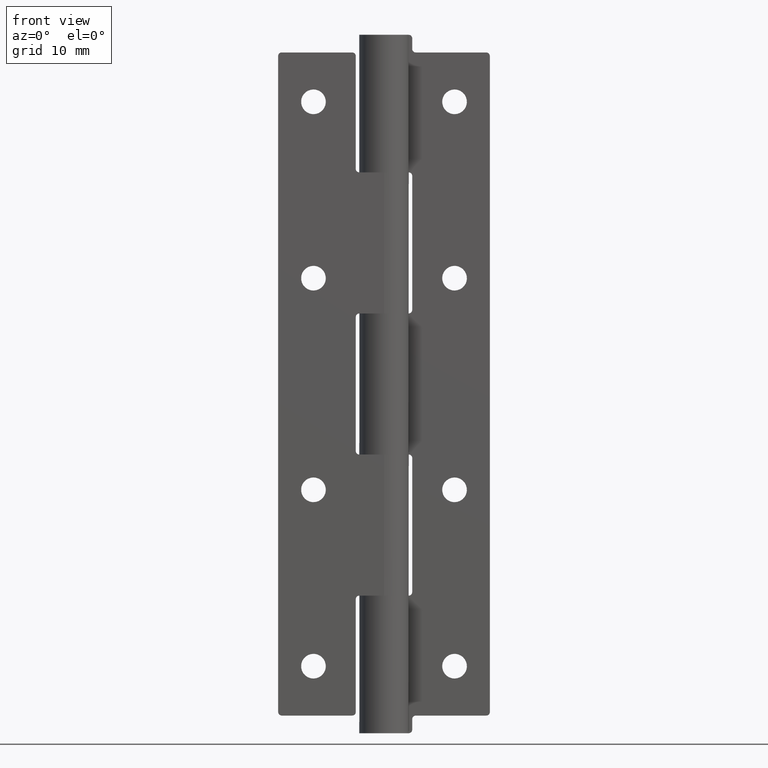
[diagram: clean part render]
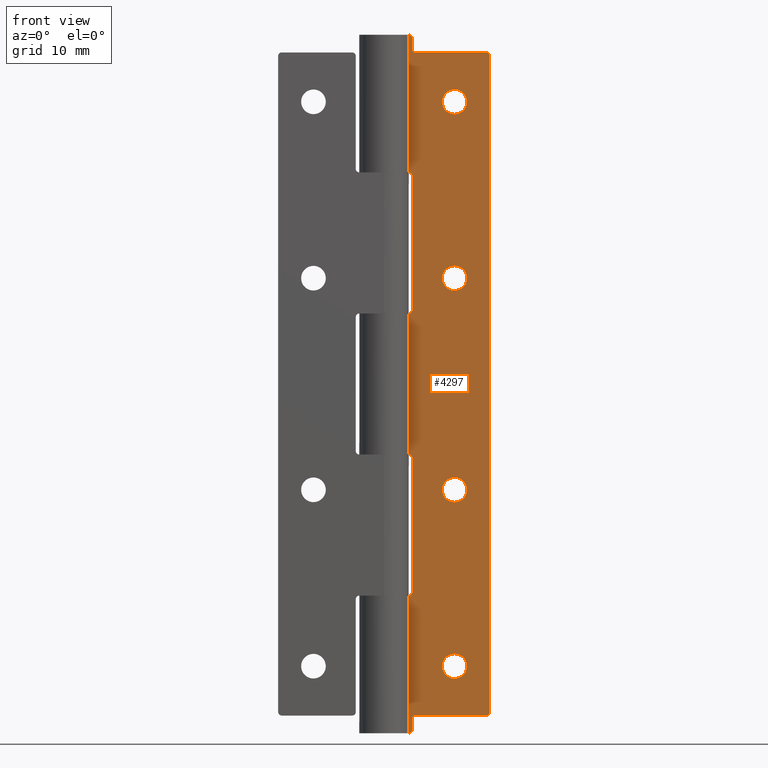
[diagram: same view with one face highlighted and labeled with its STEP entity id]
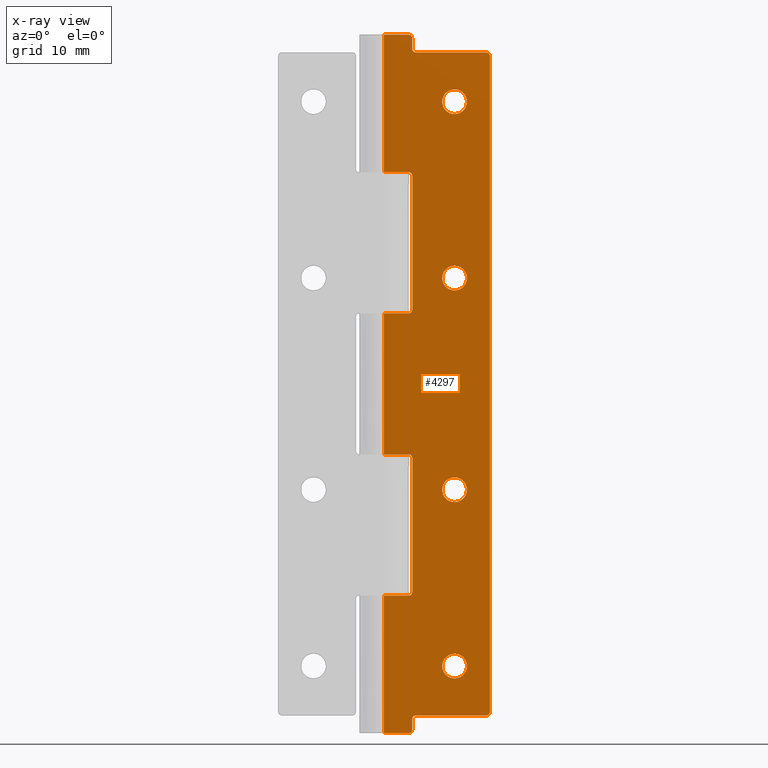
[diagram: x-ray of the same camera — body ghosted, the highlighted face saturated]
A machine part, front view. The second image highlights one B-rep face of the part: STEP entity #4297.
The next image is the same camera in x-ray: the body ghosted, the highlighted face saturated — about 0% of this face is hidden behind the body in this view.
In plain terms, the highlighted face is a freeform B-spline surface patch.
Its self-contained STEP definition (entity closure, byte-faithful):
#2262=CARTESIAN_POINT('',(10.0,2.0,91.250000000000000));
#2263=VERTEX_POINT('',#2262);
#2264=CARTESIAN_POINT('',(8.255394665999850,2.0,89.637303417940785));
#2265=VERTEX_POINT('',#2264);
#2266=CARTESIAN_POINT('',(10.0,2.0,91.250000000000000));
#2267=CARTESIAN_POINT('',(8.382316640373984,2.000000000000000,91.249999999999986));
#2268=CARTESIAN_POINT('',(8.255394665999850,2.0,89.637303417940785));
#2276=(BOUNDED_CURVE()B_SPLINE_CURVE(2,(#2266,#2267,#2268),.UNSPECIFIED.,.F.,.U.)B_SPLINE_CURVE_WITH_KNOTS((3,3),(0.0,0.236331300550804),.UNSPECIFIED.)CURVE()GEOMETRIC_REPRESENTATION_ITEM()RATIONAL_B_SPLINE_CURVE((1.0,0.723120658701222,0.969723356000766))REPRESENTATION_ITEM(''));
#2277=EDGE_CURVE('',#2263,#2265,#2276,.T.);
#2318=CARTESIAN_POINT('',(11.744605334000150,2.0,89.362696582059186));
#2319=VERTEX_POINT('',#2318);
#2325=CARTESIAN_POINT('',(11.744605334000152,2.0,89.362696582059186));
#2326=CARTESIAN_POINT('',(11.750000000000005,2.0,89.431242312317579));
#2327=CARTESIAN_POINT('',(11.750000000000000,2.0,89.500000000000000));
#2328=CARTESIAN_POINT('',(11.750000000000004,2.0,91.249999999999986));
#2329=CARTESIAN_POINT('',(10.0,2.0,91.250000000000000));
#2337=(BOUNDED_CURVE()B_SPLINE_CURVE(2,(#2325,#2326,#2327,#2328,#2329),.UNSPECIFIED.,.F.,.U.)B_SPLINE_CURVE_WITH_KNOTS((3,2,3),(0.736331300550804,0.750000000000000,1.0),.UNSPECIFIED.)CURVE()GEOMETRIC_REPRESENTATION_ITEM()RATIONAL_B_SPLINE_CURVE((0.969723356000766,0.983986122485325,1.0,0.707106781186547,1.0))REPRESENTATION_ITEM(''));
#2338=EDGE_CURVE('',#2319,#2263,#2337,.T.);
#2361=CARTESIAN_POINT('',(10.0,2.0,87.750000000000000));
#2362=VERTEX_POINT('',#2361);
#2363=CARTESIAN_POINT('',(8.255394665999850,2.0,89.637303417940785));
#2364=CARTESIAN_POINT('',(8.250000000000000,2.000000000000000,89.568757687682449));
#2365=CARTESIAN_POINT('',(8.250000000000000,2.0,89.500000000000000));
#2366=CARTESIAN_POINT('',(8.250000000000000,2.0,87.750000000000000));
#2367=CARTESIAN_POINT('',(10.0,2.0,87.750000000000000));
#2375=(BOUNDED_CURVE()B_SPLINE_CURVE(2,(#2363,#2364,#2365,#2366,#2367),.UNSPECIFIED.,.F.,.U.)B_SPLINE_CURVE_WITH_KNOTS((3,2,3),(0.236331300550804,0.250000000000000,0.500000000000000),.UNSPECIFIED.)CURVE()GEOMETRIC_REPRESENTATION_ITEM()RATIONAL_B_SPLINE_CURVE((0.969723356000766,0.983986122485326,1.0,0.707106781186547,1.0))REPRESENTATION_ITEM(''));
#2376=EDGE_CURVE('',#2265,#2362,#2375,.T.);
#2378=CARTESIAN_POINT('',(10.0,2.0,87.750000000000000));
#2379=CARTESIAN_POINT('',(11.617683359626023,2.0,87.750000000000014));
#2380=CARTESIAN_POINT('',(11.744605334000154,2.000000000000000,89.362696582059186));
#2388=(BOUNDED_CURVE()B_SPLINE_CURVE(2,(#2378,#2379,#2380),.UNSPECIFIED.,.F.,.U.)B_SPLINE_CURVE_WITH_KNOTS((3,3),(0.500000000000000,0.736331300550805),.UNSPECIFIED.)CURVE()GEOMETRIC_REPRESENTATION_ITEM()RATIONAL_B_SPLINE_CURVE((1.0,0.723120658701221,0.969723356000767))REPRESENTATION_ITEM(''));
#2389=EDGE_CURVE('',#2362,#2319,#2388,.T.);
#2444=CARTESIAN_POINT('',(10.0,2.0,66.250000000000000));
#2445=VERTEX_POINT('',#2444);
#2446=CARTESIAN_POINT('',(8.255394665999850,2.0,64.637303417940799));
#2447=VERTEX_POINT('',#2446);
#2448=CARTESIAN_POINT('',(10.0,2.0,66.250000000000000));
#2449=CARTESIAN_POINT('',(8.382316640373984,2.000000000000000,66.250000000000014));
#2450=CARTESIAN_POINT('',(8.255394665999850,2.0,64.637303417940814));
#2458=(BOUNDED_CURVE()B_SPLINE_CURVE(2,(#2448,#2449,#2450),.UNSPECIFIED.,.F.,.U.)B_SPLINE_CURVE_WITH_KNOTS((3,3),(0.0,0.236331300550804),.UNSPECIFIED.)CURVE()GEOMETRIC_REPRESENTATION_ITEM()RATIONAL_B_SPLINE_CURVE((1.0,0.723120658701222,0.969723356000766))REPRESENTATION_ITEM(''));
#2459=EDGE_CURVE('',#2445,#2447,#2458,.T.);
#2500=CARTESIAN_POINT('',(11.744605334000150,2.0,64.362696582059215));
#2501=VERTEX_POINT('',#2500);
#2507=CARTESIAN_POINT('',(11.744605334000147,2.000000000000000,64.362696582059215));
#2508=CARTESIAN_POINT('',(11.749999999999996,2.000000000000000,64.431242312317579));
#2509=CARTESIAN_POINT('',(11.750000000000000,2.0,64.500000000000000));
#2510=CARTESIAN_POINT('',(11.750000000000004,2.0,66.250000000000000));
#2511=CARTESIAN_POINT('',(10.0,2.0,66.250000000000000));
#2519=(BOUNDED_CURVE()B_SPLINE_CURVE(2,(#2507,#2508,#2509,#2510,#2511),.UNSPECIFIED.,.F.,.U.)B_SPLINE_CURVE_WITH_KNOTS((3,2,3),(0.736331300550804,0.750000000000000,1.0),.UNSPECIFIED.)CURVE()GEOMETRIC_REPRESENTATION_ITEM()RATIONAL_B_SPLINE_CURVE((0.969723356000765,0.983986122485325,1.0,0.707106781186547,1.0))REPRESENTATION_ITEM(''));
#2520=EDGE_CURVE('',#2501,#2445,#2519,.T.);
#2543=CARTESIAN_POINT('',(10.0,2.0,62.750000000000000));
#2544=VERTEX_POINT('',#2543);
#2545=CARTESIAN_POINT('',(8.255394665999850,2.0,64.637303417940814));
#2546=CARTESIAN_POINT('',(8.250000000000000,2.000000000000000,64.568757687682435));
#2547=CARTESIAN_POINT('',(8.250000000000000,2.0,64.500000000000000));
#2548=CARTESIAN_POINT('',(8.250000000000000,2.0,62.750000000000000));
#2549=CARTESIAN_POINT('',(10.0,2.0,62.750000000000000));
#2557=(BOUNDED_CURVE()B_SPLINE_CURVE(2,(#2545,#2546,#2547,#2548,#2549),.UNSPECIFIED.,.F.,.U.)B_SPLINE_CURVE_WITH_KNOTS((3,2,3),(0.236331300550804,0.250000000000000,0.500000000000000),.UNSPECIFIED.)CURVE()GEOMETRIC_REPRESENTATION_ITEM()RATIONAL_B_SPLINE_CURVE((0.969723356000766,0.983986122485326,1.0,0.707106781186547,1.0))REPRESENTATION_ITEM(''));
#2558=EDGE_CURVE('',#2447,#2544,#2557,.T.);
#2560=CARTESIAN_POINT('',(10.0,2.0,62.750000000000000));
#2561=CARTESIAN_POINT('',(11.617683359626023,2.0,62.750000000000000));
#2562=CARTESIAN_POINT('',(11.744605334000154,2.000000000000000,64.362696582059215));
#2570=(BOUNDED_CURVE()B_SPLINE_CURVE(2,(#2560,#2561,#2562),.UNSPECIFIED.,.F.,.U.)B_SPLINE_CURVE_WITH_KNOTS((3,3),(0.500000000000000,0.736331300550805),.UNSPECIFIED.)CURVE()GEOMETRIC_REPRESENTATION_ITEM()RATIONAL_B_SPLINE_CURVE((1.0,0.723120658701221,0.969723356000767))REPRESENTATION_ITEM(''));
#2571=EDGE_CURVE('',#2544,#2501,#2570,.T.);
#2626=CARTESIAN_POINT('',(10.0,2.0,36.250000000000007));
#2627=VERTEX_POINT('',#2626);
#2628=CARTESIAN_POINT('',(8.255394665999852,2.0,34.637303417940799));
#2629=VERTEX_POINT('',#2628);
#2630=CARTESIAN_POINT('',(10.0,2.0,36.250000000000007));
#2631=CARTESIAN_POINT('',(8.382316640373993,2.000000000000000,36.250000000000000));
#2632=CARTESIAN_POINT('',(8.255394665999852,2.0,34.637303417940799));
#2640=(BOUNDED_CURVE()B_SPLINE_CURVE(2,(#2630,#2631,#2632),.UNSPECIFIED.,.F.,.U.)B_SPLINE_CURVE_WITH_KNOTS((3,3),(0.0,0.236331300550804),.UNSPECIFIED.)CURVE()GEOMETRIC_REPRESENTATION_ITEM()RATIONAL_B_SPLINE_CURVE((1.0,0.723120658701223,0.969723356000764))REPRESENTATION_ITEM(''));
#2641=EDGE_CURVE('',#2627,#2629,#2640,.T.);
#2682=CARTESIAN_POINT('',(11.744605334000150,2.0,34.362696582059201));
#2683=VERTEX_POINT('',#2682);
#2689=CARTESIAN_POINT('',(11.744605334000152,2.000000000000000,34.362696582059201));
#2690=CARTESIAN_POINT('',(11.749999999999996,2.000000000000000,34.431242312317565));
#2691=CARTESIAN_POINT('',(11.750000000000000,2.0,34.500000000000000));
#2692=CARTESIAN_POINT('',(11.750000000000004,2.0,36.250000000000007));
#2693=CARTESIAN_POINT('',(10.0,2.0,36.250000000000007));
#2701=(BOUNDED_CURVE()B_SPLINE_CURVE(2,(#2689,#2690,#2691,#2692,#2693),.UNSPECIFIED.,.F.,.U.)B_SPLINE_CURVE_WITH_KNOTS((3,2,3),(0.736331300550803,0.750000000000000,1.0),.UNSPECIFIED.)CURVE()GEOMETRIC_REPRESENTATION_ITEM()RATIONAL_B_SPLINE_CURVE((0.969723356000764,0.983986122485325,1.0,0.707106781186547,1.0))REPRESENTATION_ITEM(''));
#2702=EDGE_CURVE('',#2683,#2627,#2701,.T.);
#2725=CARTESIAN_POINT('',(10.0,2.0,32.750000000000000));
#2726=VERTEX_POINT('',#2725);
#2727=CARTESIAN_POINT('',(8.255394665999852,2.000000000000000,34.637303417940799));
#2728=CARTESIAN_POINT('',(8.250000000000000,2.000000000000000,34.568757687682435));
#2729=CARTESIAN_POINT('',(8.250000000000000,2.0,34.500000000000000));
#2730=CARTESIAN_POINT('',(8.250000000000000,2.0,32.750000000000000));
#2731=CARTESIAN_POINT('',(10.0,2.0,32.750000000000000));
#2739=(BOUNDED_CURVE()B_SPLINE_CURVE(2,(#2727,#2728,#2729,#2730,#2731),.UNSPECIFIED.,.F.,.U.)B_SPLINE_CURVE_WITH_KNOTS((3,2,3),(0.236331300550804,0.250000000000000,0.500000000000000),.UNSPECIFIED.)CURVE()GEOMETRIC_REPRESENTATION_ITEM()RATIONAL_B_SPLINE_CURVE((0.969723356000764,0.983986122485325,1.0,0.707106781186547,1.0))REPRESENTATION_ITEM(''));
#2740=EDGE_CURVE('',#2629,#2726,#2739,.T.);
#2742=CARTESIAN_POINT('',(10.0,2.0,32.750000000000000));
#2743=CARTESIAN_POINT('',(11.617683359626001,2.000000000000000,32.750000000000007));
#2744=CARTESIAN_POINT('',(11.744605334000148,2.0,34.362696582059201));
#2752=(BOUNDED_CURVE()B_SPLINE_CURVE(2,(#2742,#2743,#2744),.UNSPECIFIED.,.F.,.U.)B_SPLINE_CURVE_WITH_KNOTS((3,3),(0.500000000000000,0.736331300550803),.UNSPECIFIED.)CURVE()GEOMETRIC_REPRESENTATION_ITEM()RATIONAL_B_SPLINE_CURVE((1.0,0.723120658701224,0.969723356000763))REPRESENTATION_ITEM(''));
#2753=EDGE_CURVE('',#2726,#2683,#2752,.T.);
#2808=CARTESIAN_POINT('',(10.0,2.0,11.250000000000000));
#2809=VERTEX_POINT('',#2808);
#2810=CARTESIAN_POINT('',(8.255394665999852,2.0,9.637303417940803));
#2811=VERTEX_POINT('',#2810);
#2812=CARTESIAN_POINT('',(10.0,2.0,11.250000000000000));
#2813=CARTESIAN_POINT('',(8.382316640373992,2.000000000000000,11.250000000000002));
#2814=CARTESIAN_POINT('',(8.255394665999852,2.000000000000000,9.637303417940803));
#2822=(BOUNDED_CURVE()B_SPLINE_CURVE(2,(#2812,#2813,#2814),.UNSPECIFIED.,.F.,.U.)B_SPLINE_CURVE_WITH_KNOTS((3,3),(0.0,0.236331300550804),.UNSPECIFIED.)CURVE()GEOMETRIC_REPRESENTATION_ITEM()RATIONAL_B_SPLINE_CURVE((1.0,0.723120658701222,0.969723356000765))REPRESENTATION_ITEM(''));
#2823=EDGE_CURVE('',#2809,#2811,#2822,.T.);
#2864=CARTESIAN_POINT('',(11.744605334000150,2.0,9.362696582059197));
#2865=VERTEX_POINT('',#2864);
#2871=CARTESIAN_POINT('',(11.744605334000150,2.0,9.362696582059197));
#2872=CARTESIAN_POINT('',(11.750000000000000,2.000000000000000,9.431242312317570));
#2873=CARTESIAN_POINT('',(11.750000000000000,2.0,9.500000000000000));
#2874=CARTESIAN_POINT('',(11.750000000000004,2.0,11.250000000000000));
#2875=CARTESIAN_POINT('',(10.0,2.0,11.250000000000000));
#2883=(BOUNDED_CURVE()B_SPLINE_CURVE(2,(#2871,#2872,#2873,#2874,#2875),.UNSPECIFIED.,.F.,.U.)B_SPLINE_CURVE_WITH_KNOTS((3,2,3),(0.736331300550804,0.750000000000000,1.0),.UNSPECIFIED.)CURVE()GEOMETRIC_REPRESENTATION_ITEM()RATIONAL_B_SPLINE_CURVE((0.969723356000765,0.983986122485325,1.0,0.707106781186547,1.0))REPRESENTATION_ITEM(''));
#2884=EDGE_CURVE('',#2865,#2809,#2883,.T.);
#2907=CARTESIAN_POINT('',(10.0,2.0,7.750000000000000));
#2908=VERTEX_POINT('',#2907);
#2909=CARTESIAN_POINT('',(8.255394665999852,2.000000000000000,9.637303417940803));
#2910=CARTESIAN_POINT('',(8.250000000000000,2.0,9.568757687682432));
#2911=CARTESIAN_POINT('',(8.250000000000000,2.0,9.500000000000000));
#2912=CARTESIAN_POINT('',(8.250000000000000,2.0,7.750000000000001));
#2913=CARTESIAN_POINT('',(10.0,2.0,7.750000000000000));
#2921=(BOUNDED_CURVE()B_SPLINE_CURVE(2,(#2909,#2910,#2911,#2912,#2913),.UNSPECIFIED.,.F.,.U.)B_SPLINE_CURVE_WITH_KNOTS((3,2,3),(0.236331300550804,0.250000000000000,0.500000000000000),.UNSPECIFIED.)CURVE()GEOMETRIC_REPRESENTATION_ITEM()RATIONAL_B_SPLINE_CURVE((0.969723356000765,0.983986122485325,1.0,0.707106781186547,1.0))REPRESENTATION_ITEM(''));
#2922=EDGE_CURVE('',#2811,#2908,#2921,.T.);
#2924=CARTESIAN_POINT('',(10.0,2.0,7.750000000000000));
#2925=CARTESIAN_POINT('',(11.617683359626001,2.000000000000000,7.750000000000002));
#2926=CARTESIAN_POINT('',(11.744605334000148,2.0,9.362696582059197));
#2934=(BOUNDED_CURVE()B_SPLINE_CURVE(2,(#2924,#2925,#2926),.UNSPECIFIED.,.F.,.U.)B_SPLINE_CURVE_WITH_KNOTS((3,3),(0.500000000000000,0.736331300550803),.UNSPECIFIED.)CURVE()GEOMETRIC_REPRESENTATION_ITEM()RATIONAL_B_SPLINE_CURVE((1.0,0.723120658701224,0.969723356000763))REPRESENTATION_ITEM(''));
#2935=EDGE_CURVE('',#2908,#2865,#2934,.T.);
#2986=CARTESIAN_POINT('',(3.500000000000000,2.0,39.500000000000000));
#2987=VERTEX_POINT('',#2986);
#2988=CARTESIAN_POINT('',(4.0,2.0,39.0));
#2989=VERTEX_POINT('',#2988);
#2990=CARTESIAN_POINT('',(3.500000000000000,2.0,39.500000000000000));
#2991=CARTESIAN_POINT('',(4.000000000000000,2.000000000000000,39.500000000000000));
#2992=CARTESIAN_POINT('',(4.0,2.0,39.0));
#3000=(BOUNDED_CURVE()B_SPLINE_CURVE(2,(#2990,#2991,#2992),.UNSPECIFIED.,.F.,.U.)CURVE()GEOMETRIC_REPRESENTATION_ITEM()QUASI_UNIFORM_CURVE()RATIONAL_B_SPLINE_CURVE((1.0,0.707106781186548,1.0))REPRESENTATION_ITEM(''));
#3001=EDGE_CURVE('',#2987,#2989,#3000,.T.);
#3047=CARTESIAN_POINT('',(4.0,2.0,20.0));
#3048=VERTEX_POINT('',#3047);
#3049=CARTESIAN_POINT('',(3.500000000000000,2.0,19.500000000000000));
#3050=VERTEX_POINT('',#3049);
#3051=CARTESIAN_POINT('',(4.0,2.0,20.0));
#3052=CARTESIAN_POINT('',(4.000000000000000,2.000000000000000,19.500000000000004));
#3053=CARTESIAN_POINT('',(3.500000000000000,2.0,19.500000000000000));
#3061=(BOUNDED_CURVE()B_SPLINE_CURVE(2,(#3051,#3052,#3053),.UNSPECIFIED.,.F.,.U.)CURVE()GEOMETRIC_REPRESENTATION_ITEM()QUASI_UNIFORM_CURVE()RATIONAL_B_SPLINE_CURVE((1.0,0.707106781186548,1.0))REPRESENTATION_ITEM(''));
#3062=EDGE_CURVE('',#3048,#3050,#3061,.T.);
#3108=CARTESIAN_POINT('',(3.500000000000000,2.0,79.500000000000000));
#3109=VERTEX_POINT('',#3108);
#3110=CARTESIAN_POINT('',(4.0,2.0,79.0));
#3111=VERTEX_POINT('',#3110);
#3112=CARTESIAN_POINT('',(3.500000000000000,2.0,79.500000000000000));
#3113=CARTESIAN_POINT('',(4.000000000000000,2.000000000000000,79.500000000000014));
#3114=CARTESIAN_POINT('',(4.0,2.0,79.0));
#3122=(BOUNDED_CURVE()B_SPLINE_CURVE(2,(#3112,#3113,#3114),.UNSPECIFIED.,.F.,.U.)CURVE()GEOMETRIC_REPRESENTATION_ITEM()QUASI_UNIFORM_CURVE()RATIONAL_B_SPLINE_CURVE((1.0,0.707106781186548,1.0))REPRESENTATION_ITEM(''));
#3123=EDGE_CURVE('',#3109,#3111,#3122,.T.);
#3169=CARTESIAN_POINT('',(4.0,2.0,60.0));
#3170=VERTEX_POINT('',#3169);
#3171=CARTESIAN_POINT('',(3.500000000000000,2.0,59.500000000000000));
#3172=VERTEX_POINT('',#3171);
#3173=CARTESIAN_POINT('',(4.0,2.0,60.0));
#3174=CARTESIAN_POINT('',(4.000000000000000,2.000000000000000,59.500000000000007));
#3175=CARTESIAN_POINT('',(3.500000000000000,2.0,59.500000000000000));
#3183=(BOUNDED_CURVE()B_SPLINE_CURVE(2,(#3173,#3174,#3175),.UNSPECIFIED.,.F.,.U.)CURVE()GEOMETRIC_REPRESENTATION_ITEM()QUASI_UNIFORM_CURVE()RATIONAL_B_SPLINE_CURVE((1.0,0.707106781186548,1.0))REPRESENTATION_ITEM(''));
#3184=EDGE_CURVE('',#3170,#3172,#3183,.T.);
#3229=CARTESIAN_POINT('',(0.0,2.0,39.500000000000000));
#3230=VERTEX_POINT('',#3229);
#3231=CARTESIAN_POINT('',(3.500000000000000,2.0,39.500000000000000));
#3232=CARTESIAN_POINT('',(0.0,2.0,39.500000000000000));
#3233=QUASI_UNIFORM_CURVE('',1,(#3231,#3232),.UNSPECIFIED.,.F.,.U.);
#3234=EDGE_CURVE('',#2987,#3230,#3233,.T.);
#3297=CARTESIAN_POINT('',(4.0,2.0,20.0));
#3298=CARTESIAN_POINT('',(4.0,2.0,39.0));
#3299=QUASI_UNIFORM_CURVE('',1,(#3297,#3298),.UNSPECIFIED.,.F.,.U.);
#3300=EDGE_CURVE('',#3048,#2989,#3299,.T.);
#3311=CARTESIAN_POINT('',(0.0,2.0,19.500000000000000));
#3312=VERTEX_POINT('',#3311);
#3313=CARTESIAN_POINT('',(0.0,2.0,19.500000000000000));
#3314=CARTESIAN_POINT('',(3.500000000000000,2.0,19.500000000000000));
#3315=QUASI_UNIFORM_CURVE('',1,(#3313,#3314),.UNSPECIFIED.,.F.,.U.);
#3316=EDGE_CURVE('',#3312,#3050,#3315,.T.);
#3381=CARTESIAN_POINT('',(0.0,2.0,59.500000000000000));
#3382=VERTEX_POINT('',#3381);
#3383=CARTESIAN_POINT('',(0.0,2.0,59.500000000000000));
#3384=CARTESIAN_POINT('',(3.500000000000000,2.0,59.500000000000000));
#3385=QUASI_UNIFORM_CURVE('',1,(#3383,#3384),.UNSPECIFIED.,.F.,.U.);
#3386=EDGE_CURVE('',#3382,#3172,#3385,.T.);
#3457=CARTESIAN_POINT('',(4.0,2.0,60.0));
#3458=CARTESIAN_POINT('',(4.0,2.0,79.0));
#3459=QUASI_UNIFORM_CURVE('',1,(#3457,#3458),.UNSPECIFIED.,.F.,.U.);
#3460=EDGE_CURVE('',#3170,#3111,#3459,.T.);
#3479=CARTESIAN_POINT('',(0.0,2.0,79.500000000000000));
#3480=VERTEX_POINT('',#3479);
#3481=CARTESIAN_POINT('',(3.500000000000000,2.0,79.500000000000000));
#3482=CARTESIAN_POINT('',(0.0,2.0,79.500000000000000));
#3483=QUASI_UNIFORM_CURVE('',1,(#3481,#3482),.UNSPECIFIED.,.F.,.U.);
#3484=EDGE_CURVE('',#3109,#3480,#3483,.T.);
#3550=CARTESIAN_POINT('',(14.999999999999799,2.0,96.0));
#3551=VERTEX_POINT('',#3550);
#3552=CARTESIAN_POINT('',(14.499999999999799,2.0,96.500000000000000));
#3553=VERTEX_POINT('',#3552);
#3554=CARTESIAN_POINT('',(14.999999999999799,2.0,96.0));
#3555=CARTESIAN_POINT('',(14.999999999999796,2.000000000000000,96.500000000000014));
#3556=CARTESIAN_POINT('',(14.499999999999799,2.0,96.500000000000000));
#3564=(BOUNDED_CURVE()B_SPLINE_CURVE(2,(#3554,#3555,#3556),.UNSPECIFIED.,.F.,.U.)CURVE()GEOMETRIC_REPRESENTATION_ITEM()QUASI_UNIFORM_CURVE()RATIONAL_B_SPLINE_CURVE((1.0,0.707106781186548,1.0))REPRESENTATION_ITEM(''));
#3565=EDGE_CURVE('',#3551,#3553,#3564,.T.);
#3611=CARTESIAN_POINT('',(4.500000000000000,2.0,96.500000000000000));
#3612=VERTEX_POINT('',#3611);
#3613=CARTESIAN_POINT('',(4.0,2.0,97.0));
#3614=VERTEX_POINT('',#3613);
#3615=CARTESIAN_POINT('',(4.500000000000000,2.0,96.500000000000000));
#3616=CARTESIAN_POINT('',(4.000000000000000,2.000000000000000,96.500000000000014));
#3617=CARTESIAN_POINT('',(4.0,2.0,97.0));
#3625=(BOUNDED_CURVE()B_SPLINE_CURVE(2,(#3615,#3616,#3617),.UNSPECIFIED.,.F.,.U.)CURVE()GEOMETRIC_REPRESENTATION_ITEM()QUASI_UNIFORM_CURVE()RATIONAL_B_SPLINE_CURVE((1.0,0.707106781186548,1.0))REPRESENTATION_ITEM(''));
#3626=EDGE_CURVE('',#3612,#3614,#3625,.T.);
#3672=CARTESIAN_POINT('',(4.0,2.0,98.500000000000000));
#3673=VERTEX_POINT('',#3672);
#3674=CARTESIAN_POINT('',(3.500000000000000,2.0,99.0));
#3675=VERTEX_POINT('',#3674);
#3676=CARTESIAN_POINT('',(4.0,2.0,98.500000000000000));
#3677=CARTESIAN_POINT('',(4.000000000000000,2.000000000000000,98.999999999999986));
#3678=CARTESIAN_POINT('',(3.500000000000000,2.0,99.0));
#3686=(BOUNDED_CURVE()B_SPLINE_CURVE(2,(#3676,#3677,#3678),.UNSPECIFIED.,.F.,.U.)CURVE()GEOMETRIC_REPRESENTATION_ITEM()QUASI_UNIFORM_CURVE()RATIONAL_B_SPLINE_CURVE((1.0,0.707106781186548,1.0))REPRESENTATION_ITEM(''));
#3687=EDGE_CURVE('',#3673,#3675,#3686,.T.);
#3733=CARTESIAN_POINT('',(3.500000000000000,2.0,0.0));
#3734=VERTEX_POINT('',#3733);
#3735=CARTESIAN_POINT('',(4.0,2.0,0.500000000000000));
#3736=VERTEX_POINT('',#3735);
#3737=CARTESIAN_POINT('',(3.500000000000000,2.0,0.0));
#3738=CARTESIAN_POINT('',(4.000000000000000,2.000000000000000,0.0));
#3739=CARTESIAN_POINT('',(4.0,2.0,0.500000000000000));
#3747=(BOUNDED_CURVE()B_SPLINE_CURVE(2,(#3737,#3738,#3739),.UNSPECIFIED.,.F.,.U.)CURVE()GEOMETRIC_REPRESENTATION_ITEM()QUASI_UNIFORM_CURVE()RATIONAL_B_SPLINE_CURVE((1.0,0.707106781186548,1.0))REPRESENTATION_ITEM(''));
#3748=EDGE_CURVE('',#3734,#3736,#3747,.T.);
#3794=CARTESIAN_POINT('',(4.0,2.0,2.0));
#3795=VERTEX_POINT('',#3794);
#3796=CARTESIAN_POINT('',(4.500000000000000,2.0,2.500000000000000));
#3797=VERTEX_POINT('',#3796);
#3798=CARTESIAN_POINT('',(4.0,2.0,2.0));
#3799=CARTESIAN_POINT('',(4.000000000000000,2.000000000000000,2.500000000000000));
#3800=CARTESIAN_POINT('',(4.500000000000000,2.0,2.500000000000000));
#3808=(BOUNDED_CURVE()B_SPLINE_CURVE(2,(#3798,#3799,#3800),.UNSPECIFIED.,.F.,.U.)CURVE()GEOMETRIC_REPRESENTATION_ITEM()QUASI_UNIFORM_CURVE()RATIONAL_B_SPLINE_CURVE((1.0,0.707106781186548,1.0))REPRESENTATION_ITEM(''));
#3809=EDGE_CURVE('',#3795,#3797,#3808,.T.);
#3855=CARTESIAN_POINT('',(14.499999999999799,2.0,2.500000000000000));
#3856=VERTEX_POINT('',#3855);
#3857=CARTESIAN_POINT('',(14.999999999999799,2.0,3.0));
#3858=VERTEX_POINT('',#3857);
#3859=CARTESIAN_POINT('',(14.499999999999799,2.0,2.500000000000000));
#3860=CARTESIAN_POINT('',(14.999999999999796,2.000000000000000,2.500000000000000));
#3861=CARTESIAN_POINT('',(14.999999999999799,2.0,3.0));
#3869=(BOUNDED_CURVE()B_SPLINE_CURVE(2,(#3859,#3860,#3861),.UNSPECIFIED.,.F.,.U.)CURVE()GEOMETRIC_REPRESENTATION_ITEM()QUASI_UNIFORM_CURVE()RATIONAL_B_SPLINE_CURVE((1.0,0.707106781186548,1.0))REPRESENTATION_ITEM(''));
#3870=EDGE_CURVE('',#3856,#3858,#3869,.T.);
#3913=CARTESIAN_POINT('',(4.500000000000000,2.0,96.500000000000000));
#3914=CARTESIAN_POINT('',(14.499999999999799,2.0,96.500000000000000));
#3915=QUASI_UNIFORM_CURVE('',1,(#3913,#3914),.UNSPECIFIED.,.F.,.U.);
#3916=EDGE_CURVE('',#3612,#3553,#3915,.T.);
#3933=CARTESIAN_POINT('',(4.0,2.0,98.500000000000000));
#3934=CARTESIAN_POINT('',(4.0,2.0,97.0));
#3935=QUASI_UNIFORM_CURVE('',1,(#3933,#3934),.UNSPECIFIED.,.F.,.U.);
#3936=EDGE_CURVE('',#3673,#3614,#3935,.T.);
#3947=CARTESIAN_POINT('',(4.500000000000000,2.0,2.500000000000000));
#3948=CARTESIAN_POINT('',(14.499999999999799,2.0,2.500000000000000));
#3949=QUASI_UNIFORM_CURVE('',1,(#3947,#3948),.UNSPECIFIED.,.F.,.U.);
#3950=EDGE_CURVE('',#3797,#3856,#3949,.T.);
#3967=CARTESIAN_POINT('',(4.0,2.0,0.500000000000000));
#3968=CARTESIAN_POINT('',(4.0,2.0,2.0));
#3969=QUASI_UNIFORM_CURVE('',1,(#3967,#3968),.UNSPECIFIED.,.F.,.U.);
#3970=EDGE_CURVE('',#3736,#3795,#3969,.T.);
#3995=CARTESIAN_POINT('',(0.0,2.0,0.0));
#3996=VERTEX_POINT('',#3995);
#3997=CARTESIAN_POINT('',(3.500000000000000,2.0,0.0));
#3998=CARTESIAN_POINT('',(0.0,2.0,0.0));
#3999=QUASI_UNIFORM_CURVE('',1,(#3997,#3998),.UNSPECIFIED.,.F.,.U.);
#4000=EDGE_CURVE('',#3734,#3996,#3999,.T.);
#4057=CARTESIAN_POINT('',(0.0,2.0,99.0));
#4058=VERTEX_POINT('',#4057);
#4059=CARTESIAN_POINT('',(3.500000000000000,2.0,99.0));
#4060=CARTESIAN_POINT('',(0.0,2.0,99.0));
#4061=QUASI_UNIFORM_CURVE('',1,(#4059,#4060),.UNSPECIFIED.,.F.,.U.);
#4062=EDGE_CURVE('',#3675,#4058,#4061,.T.);
#4203=CARTESIAN_POINT('',(0.0,2.0,59.500000000000000));
#4204=CARTESIAN_POINT('',(0.0,2.0,39.500000000000000));
#4205=QUASI_UNIFORM_CURVE('',1,(#4203,#4204),.UNSPECIFIED.,.F.,.U.);
#4206=EDGE_CURVE('',#3382,#3230,#4205,.T.);
#4223=CARTESIAN_POINT('',(14.999999999999799,2.0,96.0));
#4224=CARTESIAN_POINT('',(14.999999999999799,2.0,3.0));
#4225=QUASI_UNIFORM_CURVE('',1,(#4223,#4224),.UNSPECIFIED.,.F.,.U.);
#4226=EDGE_CURVE('',#3551,#3858,#4225,.T.);
#4232=CARTESIAN_POINT('',(-0.749249970927078,2.0,103.945049808118800));
#4233=CARTESIAN_POINT('',(-0.749249970927078,2.0,-4.945052463505712));
#4234=CARTESIAN_POINT('',(15.749250373258230,2.0,103.945049808118800));
#4235=CARTESIAN_POINT('',(15.749250373258230,2.0,-4.945052463505712));
#4236=B_SPLINE_SURFACE_WITH_KNOTS('',1,1,((#4232,#4234),(#4233,#4235)),.UNSPECIFIED.,.F.,.F.,.U.,(2,2),(2,2),(0.0,108.890102271624500),(0.0,16.498500344185310),.UNSPECIFIED.);
#4237=ORIENTED_EDGE('',*,*,#3316,.F.);
#4238=CARTESIAN_POINT('',(0.0,2.0,19.500000000000000));
#4239=CARTESIAN_POINT('',(0.0,2.0,0.0));
#4240=QUASI_UNIFORM_CURVE('',1,(#4238,#4239),.UNSPECIFIED.,.F.,.U.);
#4241=EDGE_CURVE('',#3312,#3996,#4240,.T.);
#4242=ORIENTED_EDGE('',*,*,#4241,.T.);
#4243=ORIENTED_EDGE('',*,*,#4000,.F.);
#4244=ORIENTED_EDGE('',*,*,#3748,.T.);
#4245=ORIENTED_EDGE('',*,*,#3970,.T.);
#4246=ORIENTED_EDGE('',*,*,#3809,.T.);
#4247=ORIENTED_EDGE('',*,*,#3950,.T.);
#4248=ORIENTED_EDGE('',*,*,#3870,.T.);
#4249=ORIENTED_EDGE('',*,*,#4226,.F.);
#4250=ORIENTED_EDGE('',*,*,#3565,.T.);
#4251=ORIENTED_EDGE('',*,*,#3916,.F.);
#4252=ORIENTED_EDGE('',*,*,#3626,.T.);
#4253=ORIENTED_EDGE('',*,*,#3936,.F.);
#4254=ORIENTED_EDGE('',*,*,#3687,.T.);
#4255=ORIENTED_EDGE('',*,*,#4062,.T.);
#4256=CARTESIAN_POINT('',(0.0,2.0,99.0));
#4257=CARTESIAN_POINT('',(0.0,2.0,79.500000000000000));
#4258=QUASI_UNIFORM_CURVE('',1,(#4256,#4257),.UNSPECIFIED.,.F.,.U.);
#4259=EDGE_CURVE('',#4058,#3480,#4258,.T.);
#4260=ORIENTED_EDGE('',*,*,#4259,.T.);
#4261=ORIENTED_EDGE('',*,*,#3484,.F.);
#4262=ORIENTED_EDGE('',*,*,#3123,.T.);
#4263=ORIENTED_EDGE('',*,*,#3460,.F.);
#4264=ORIENTED_EDGE('',*,*,#3184,.T.);
#4265=ORIENTED_EDGE('',*,*,#3386,.F.);
#4266=ORIENTED_EDGE('',*,*,#4206,.T.);
#4267=ORIENTED_EDGE('',*,*,#3234,.F.);
#4268=ORIENTED_EDGE('',*,*,#3001,.T.);
#4269=ORIENTED_EDGE('',*,*,#3300,.F.);
#4270=ORIENTED_EDGE('',*,*,#3062,.T.);
#4271=EDGE_LOOP('',(#4237,#4242,#4243,#4244,#4245,#4246,#4247,#4248,#4249,#4250,#4251,#4252,#4253,#4254,#4255,#4260,#4261,#4262,#4263,#4264,#4265,#4266,#4267,#4268,#4269,#4270));
#4272=FACE_OUTER_BOUND('',#4271,.T.);
#4273=ORIENTED_EDGE('',*,*,#2935,.F.);
#4274=ORIENTED_EDGE('',*,*,#2922,.F.);
#4275=ORIENTED_EDGE('',*,*,#2823,.F.);
#4276=ORIENTED_EDGE('',*,*,#2884,.F.);
#4277=EDGE_LOOP('',(#4273,#4274,#4275,#4276));
#4278=FACE_BOUND('',#4277,.T.);
#4279=ORIENTED_EDGE('',*,*,#2753,.F.);
#4280=ORIENTED_EDGE('',*,*,#2740,.F.);
#4281=ORIENTED_EDGE('',*,*,#2641,.F.);
#4282=ORIENTED_EDGE('',*,*,#2702,.F.);
#4283=EDGE_LOOP('',(#4279,#4280,#4281,#4282));
#4284=FACE_BOUND('',#4283,.T.);
#4285=ORIENTED_EDGE('',*,*,#2571,.F.);
#4286=ORIENTED_EDGE('',*,*,#2558,.F.);
#4287=ORIENTED_EDGE('',*,*,#2459,.F.);
#4288=ORIENTED_EDGE('',*,*,#2520,.F.);
#4289=EDGE_LOOP('',(#4285,#4286,#4287,#4288));
#4290=FACE_BOUND('',#4289,.T.);
#4291=ORIENTED_EDGE('',*,*,#2389,.F.);
#4292=ORIENTED_EDGE('',*,*,#2376,.F.);
#4293=ORIENTED_EDGE('',*,*,#2277,.F.);
#4294=ORIENTED_EDGE('',*,*,#2338,.F.);
#4295=EDGE_LOOP('',(#4291,#4292,#4293,#4294));
#4296=FACE_BOUND('',#4295,.T.);
#4297=ADVANCED_FACE('',(#4272,#4278,#4284,#4290,#4296),#4236,.T.);